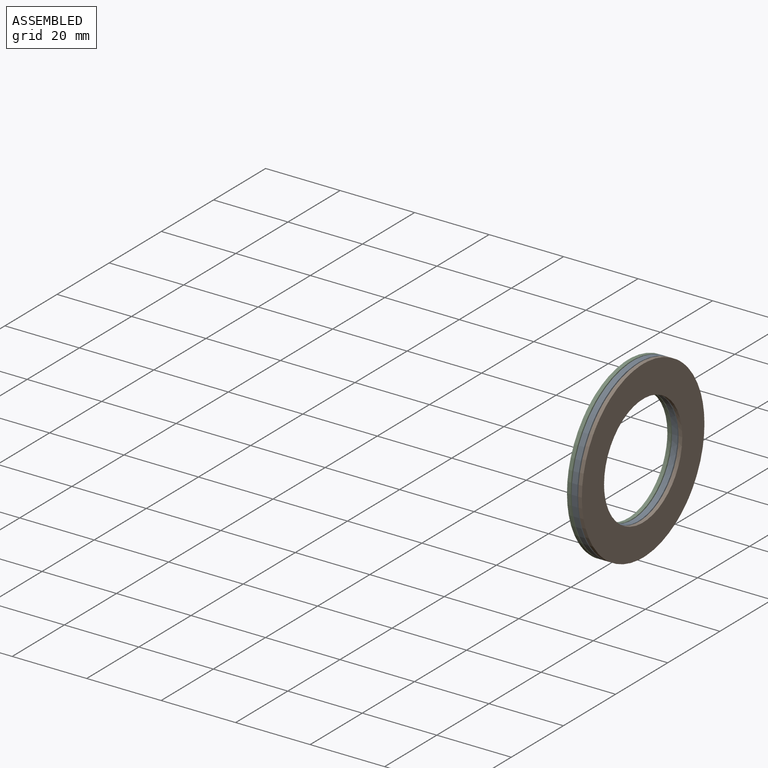
[diagram: assembled view]
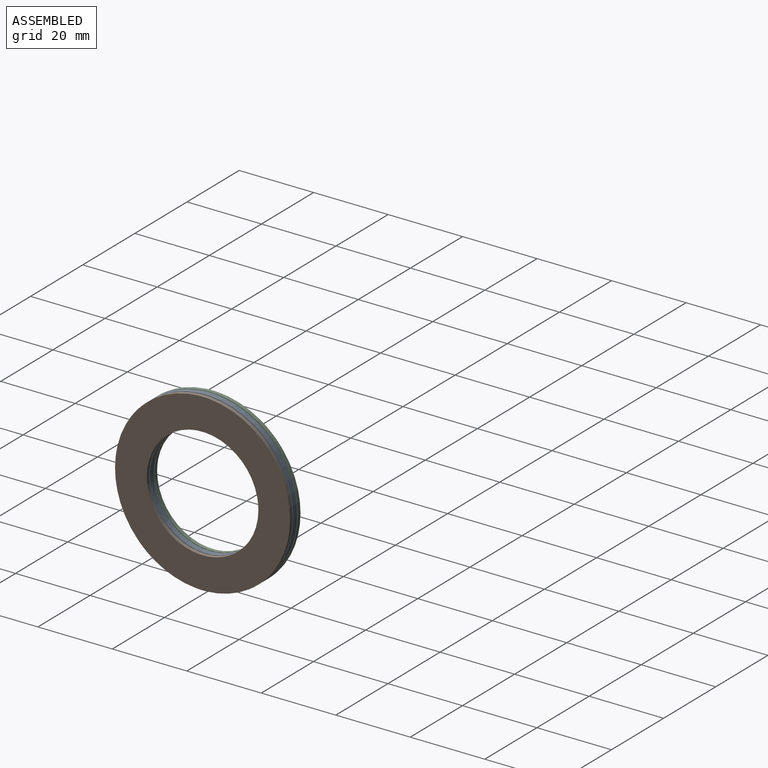
[diagram: assembled view, second angle]
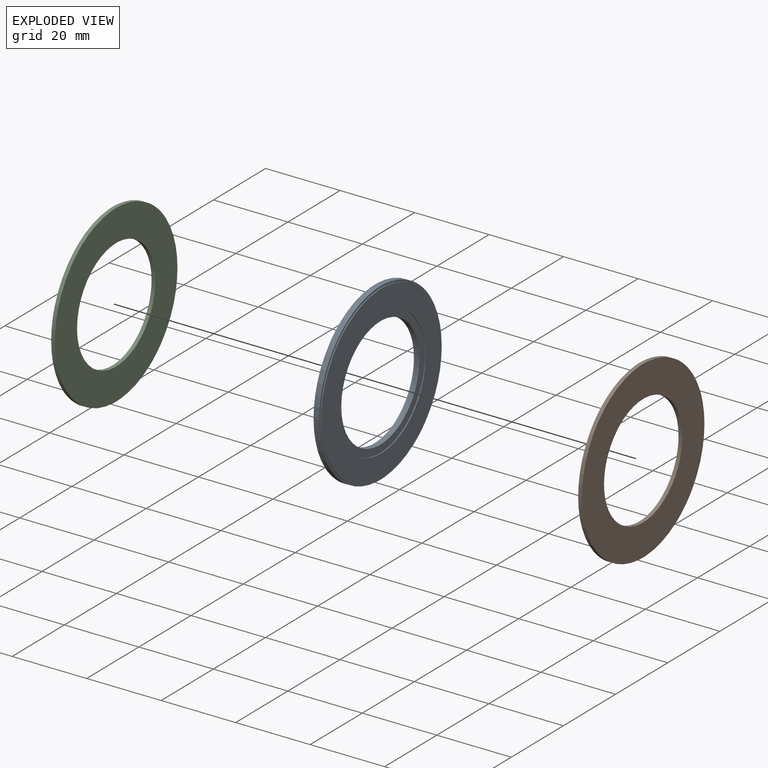
[diagram: exploded view]
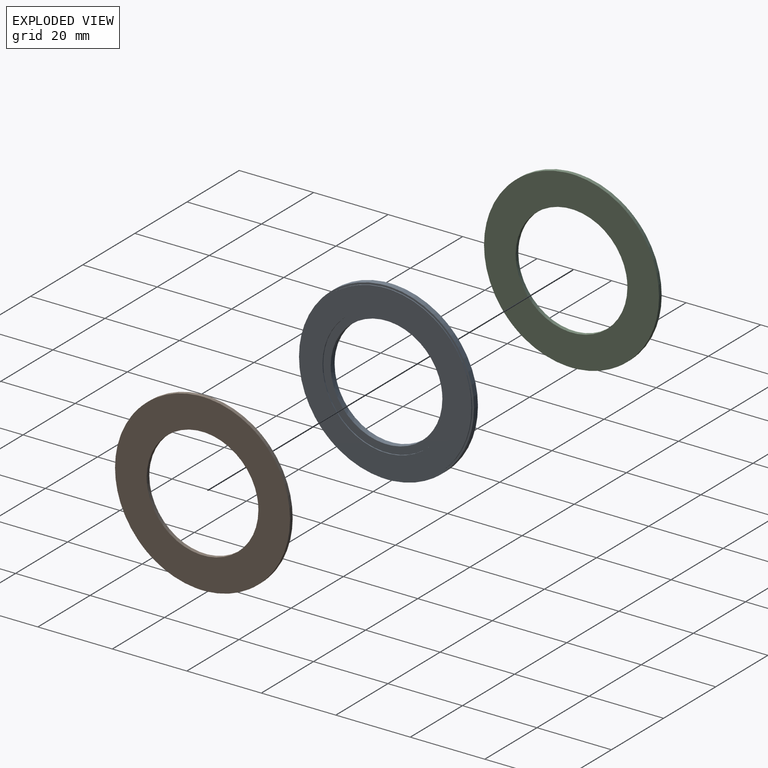
[diagram: exploded view, second angle]
ASSEMBLY  parts=3 mates=2
PART A: 18 faces, bbox 2x47x47.9 mm
  f0: cylinder r=17mm len=34mm, axis (1,0,0), area 13.4mm2, adj f1,f2,f3
  f1: cylinder r=17mm len=34mm, axis (1,0,0), area 13.4mm2, adj f0,f2,f3
  f2: plane 46.85x46mm, normal (1,0,0), area 754mm2, adj f0,f1,f4,f5
  f3: plane 34.63x34mm, normal (1,0,0), area 201.1mm2, adj f0,f1,f6,f7
  f4: cylinder r=23mm len=46mm, axis (1,0,0), area 18.1mm2, adj f2,f5,f8
  f5: cylinder r=23mm len=46mm, axis (1,0,0), area 18.1mm2, adj f2,f4,f8
  f6: cylinder r=15mm len=30mm, axis (1,0,0), area 70.7mm2, adj f3,f7,f9
  f7: cylinder r=15mm len=30mm, axis (1,0,0), area 70.7mm2, adj f3,f6,f9
  f8: plane 47.87x47mm, normal (1,0,0), area 73mm2, adj f4,f5,f10,f11
  f9: plane 34.63x34mm, normal (-1,0,0), area 201.1mm2, adj f6,f7,f12,f13
  f10: cylinder r=23.5mm len=47mm, axis (1,0,0), area 110.7mm2, adj f8,f11,f14
  f11: cylinder r=23.5mm len=47mm, axis (1,0,0), area 110.7mm2, adj f8,f10,f14
  f12: cylinder r=17mm len=34mm, axis (1,0,0), area 13.4mm2, adj f9,f13,f15
  f13: cylinder r=17mm len=34mm, axis (1,0,0), area 13.4mm2, adj f9,f12,f15
  f14: plane 47.87x47mm, normal (-1,0,0), area 73mm2, adj f10,f11,f16,f17
  f15: plane 46.85x46mm, normal (-1,0,0), area 754mm2, adj f12,f13,f16,f17
  f16: cylinder r=23mm len=46mm, axis (1,0,0), area 18.1mm2, adj f14,f15,f17
  f17: cylinder r=23mm len=46mm, axis (1,0,0), area 18.1mm2, adj f14,f15,f16
PART B: 6 faces, bbox 1x47x47.9 mm
  f0: plane 47.87x47mm, normal (1,0,0), area 1028.1mm2, adj f1,f2,f3,f4
  f1: cylinder r=23.5mm len=47mm, axis (1,0,0), area 73.8mm2, adj f0,f2,f5
  f2: cylinder r=23.5mm len=47mm, axis (1,0,0), area 73.8mm2, adj f0,f1,f5
  f3: cylinder r=15mm len=30mm, axis (1,0,0), area 47.1mm2, adj f0,f4,f5
  f4: cylinder r=15mm len=30mm, axis (1,0,0), area 47.1mm2, adj f0,f3,f5
  f5: plane 47.87x47mm, normal (-1,0,0), area 1028.1mm2, adj f1,f2,f3,f4
PART C: same geometry as B
PLACE A t=(23.4,0,0)mm
PLACE B rot(axis=(0,1,0),180deg) t=(24.9,0,0)mm
PLACE C t=(21.9,0,0)mm
MATE revolute C.f1 <-> A.f0  axis (1,0,0) through (22.4,0,0)mm
MATE revolute B.f1 <-> A.f0  axis (-1,0,0) through (24.4,0,0)mm
